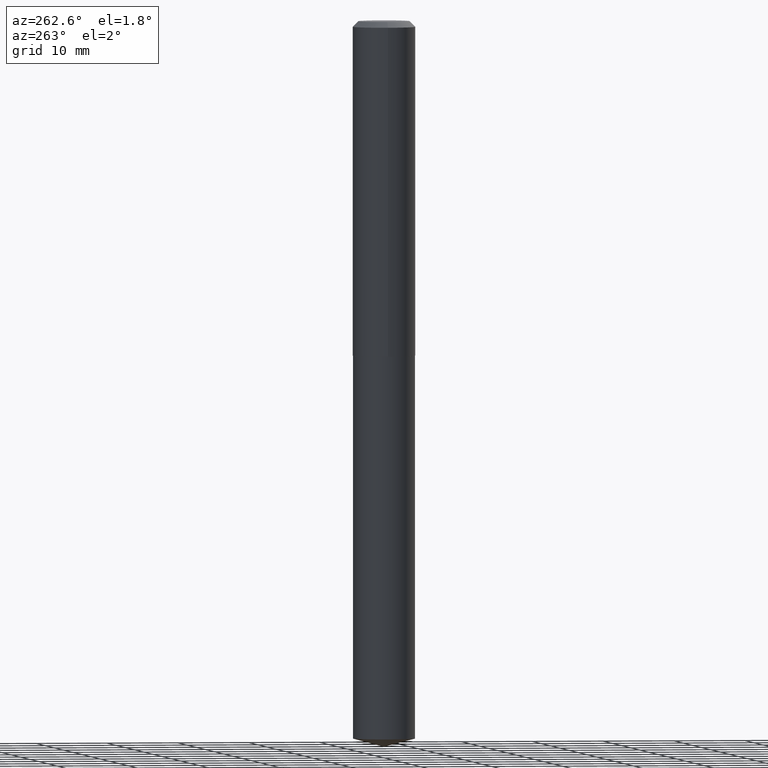
[diagram: clean part render]
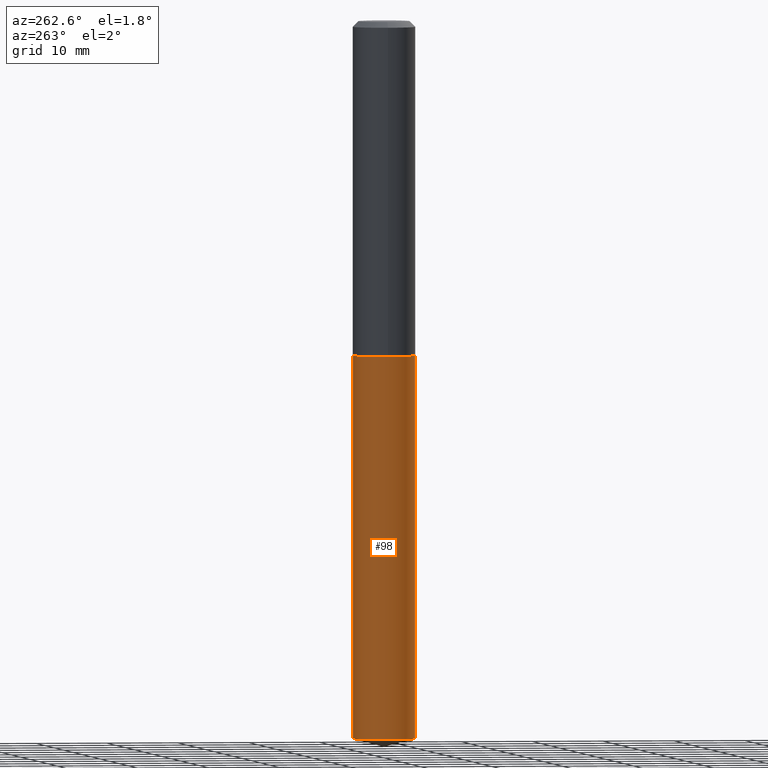
[diagram: same view with one face highlighted and labeled with its STEP entity id]
A machine part, auxiliary view. The second image highlights one B-rep face of the part: STEP entity #98.
In plain terms, the highlighted cylindrical surface (edge-blend (fillet) strip) has radius 4.3663 mm, axis along (-0, 0, 1).
Its self-contained STEP definition (entity closure, byte-faithful):
#2 = EDGE_CURVE ( 'NONE', #159, #296, #376, .T. ) ;
#32 = AXIS2_PLACEMENT_3D ( 'NONE', #203, #145, #381 ) ;
#39 = CARTESIAN_POINT ( 'NONE',  ( 1.221422962771708835E-15, 0.1718999999999935302, -1.843800000000000328 ) ) ;
#41 = ORIENTED_EDGE ( 'NONE', *, *, #153, .F. ) ;
#56 = CYLINDRICAL_SURFACE ( 'NONE', #197, 0.1718999999999999695 ) ;
#67 = CARTESIAN_POINT ( 'NONE',  ( 1.221422962771708441E-15, 0.1718999999999861195, -3.953939533821090535 ) ) ;
#77 = ORIENTED_EDGE ( 'NONE', *, *, #2, .T. ) ;
#79 = VERTEX_POINT ( 'NONE', #268 ) ;
#84 = VECTOR ( 'NONE', #219, 39.37007874015748143 ) ;
#98 = ADVANCED_FACE ( 'NONE', ( #323 ), #56, .T. ) ;
#120 = DIRECTION ( 'NONE',  ( -6.982962677686266711E-15, -1.000000000000000000, 3.178415350394722068E-15 ) ) ;
#123 = CARTESIAN_POINT ( 'NONE',  ( 1.221422962771656968E-15, 0.1718999999999935302, -1.843800000000000328 ) ) ;
#125 = VECTOR ( 'NONE', #364, 39.37007874015748143 ) ;
#145 = DIRECTION ( 'NONE',  ( -2.445482673583201242E-29, 3.491461479939833844E-15, 1.000000000000000000 ) ) ;
#153 = EDGE_CURVE ( 'NONE', #280, #79, #291, .T. ) ;
#154 = LINE ( 'NONE', #123, #125 ) ;
#159 = VERTEX_POINT ( 'NONE', #67 ) ;
#172 = DIRECTION ( 'NONE',  ( -6.982962677686266711E-15, -1.000000000000000000, 3.178415350394722068E-15 ) ) ;
#197 = AXIS2_PLACEMENT_3D ( 'NONE', #379, #325, #172 ) ;
#202 = EDGE_CURVE ( 'NONE', #159, #280, #154, .T. ) ;
#203 = CARTESIAN_POINT ( 'NONE',  ( 9.669265053646563538E-29, -1.380506419219352593E-14, -3.953939533821090091 ) ) ;
#213 = CARTESIAN_POINT ( 'NONE',  ( -1.200371284294171620E-15, -0.1719000000000137363, -3.953939533821089647 ) ) ;
#214 = DIRECTION ( 'NONE',  ( -2.445482673583201242E-29, 3.491461479939833844E-15, 1.000000000000000000 ) ) ;
#219 = DIRECTION ( 'NONE',  ( -2.445482673583200962E-29, 3.491461479939833449E-15, 1.000000000000000000 ) ) ;
#221 = EDGE_LOOP ( 'NONE', ( #288, #77, #283, #41 ) ) ;
#244 = AXIS2_PLACEMENT_3D ( 'NONE', #334, #214, #120 ) ;
#245 = EDGE_CURVE ( 'NONE', #296, #79, #247, .T. ) ;
#247 = LINE ( 'NONE', #251, #84 ) ;
#251 = CARTESIAN_POINT ( 'NONE',  ( -1.200371284294223882E-15, -0.1719000000000064365, -1.843799999999999439 ) ) ;
#268 = CARTESIAN_POINT ( 'NONE',  ( -1.200371284294223882E-15, -0.1719000000000064365, -1.843799999999999439 ) ) ;
#280 = VERTEX_POINT ( 'NONE', #39 ) ;
#283 = ORIENTED_EDGE ( 'NONE', *, *, #245, .T. ) ;
#288 = ORIENTED_EDGE ( 'NONE', *, *, #202, .F. ) ;
#291 = CIRCLE ( 'NONE', #244, 0.1718999999999999695 ) ;
#296 = VERTEX_POINT ( 'NONE', #213 ) ;
#323 = FACE_OUTER_BOUND ( 'NONE', #221, .T. ) ;
#325 = DIRECTION ( 'NONE',  ( -2.445482673583201242E-29, 3.491461479939833844E-15, 1.000000000000000000 ) ) ;
#334 = CARTESIAN_POINT ( 'NONE',  ( 4.508955384844154993E-29, -6.437593292558991362E-15, -1.843799999999999883 ) ) ;
#364 = DIRECTION ( 'NONE',  ( -2.445482673583200962E-29, 3.491461479939833449E-15, 1.000000000000000000 ) ) ;
#376 = CIRCLE ( 'NONE', #32, 0.1718999999999999695 ) ;
#379 = CARTESIAN_POINT ( 'NONE',  ( 4.508955384844154993E-29, -6.437593292558991362E-15, -1.843799999999999883 ) ) ;
#381 = DIRECTION ( 'NONE',  ( -6.982962677686266711E-15, -1.000000000000000000, 3.178415350394722068E-15 ) ) ;